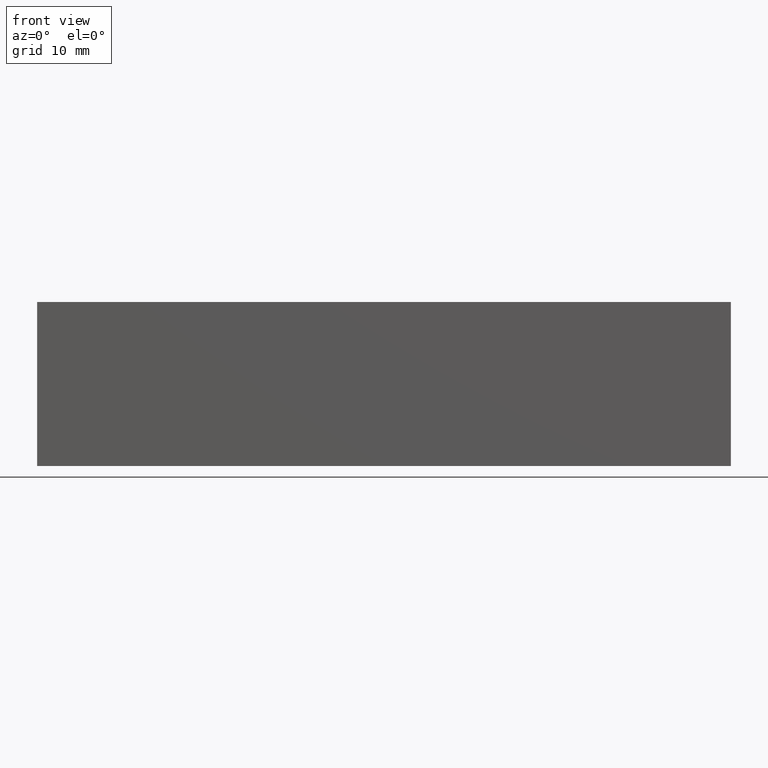
[diagram: clean part render]
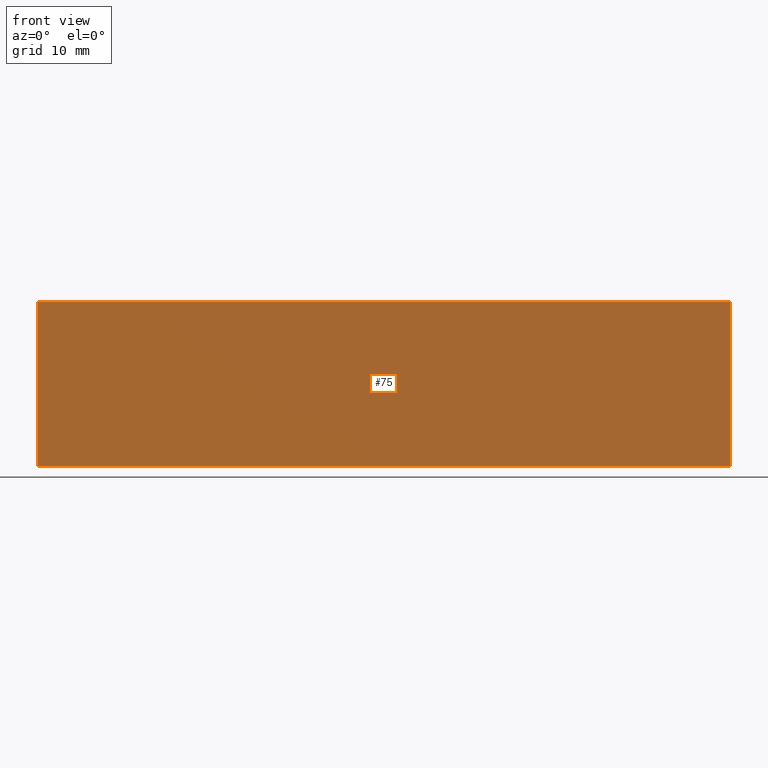
[diagram: same view with one face highlighted and labeled with its STEP entity id]
A machine part, front view. The second image highlights one B-rep face of the part: STEP entity #75.
In plain terms, the highlighted planar face has unit normal (0, 1, 0).
Its self-contained STEP definition (entity closure, byte-faithful):
#6 = PLANE ( 'NONE',  #300 ) ;
#9 = DIRECTION ( 'NONE',  ( 1.000000000000000000, 0.0000000000000000000, 0.0000000000000000000 ) ) ;
#19 = LINE ( 'NONE', #192, #268 ) ;
#30 = DIRECTION ( 'NONE',  ( 0.0000000000000000000, -0.0000000000000000000, 1.000000000000000000 ) ) ;
#38 = VECTOR ( 'NONE', #9, 1000.000000000000000 ) ;
#55 = EDGE_LOOP ( 'NONE', ( #209, #70, #182, #173 ) ) ;
#59 = CARTESIAN_POINT ( 'NONE',  ( 57.56530050263808100, 74.88315572825172200, 15.00000000000000000 ) ) ;
#63 = CARTESIAN_POINT ( 'NONE',  ( 120.9653007026382200, 74.88315572825172200, 15.00000000000000000 ) ) ;
#70 = ORIENTED_EDGE ( 'NONE', *, *, #244, .F. ) ;
#75 = ADVANCED_FACE ( 'NONE', ( #206 ), #6, .F. ) ;
#82 = DIRECTION ( 'NONE',  ( 0.0000000000000000000, 1.000000000000000000, 0.0000000000000000000 ) ) ;
#90 = DIRECTION ( 'NONE',  ( 1.000000000000000000, 0.0000000000000000000, 0.0000000000000000000 ) ) ;
#99 = EDGE_CURVE ( 'NONE', #136, #142, #177, .T. ) ;
#106 = CARTESIAN_POINT ( 'NONE',  ( 57.56530050263808100, 74.88315572825172200, 0.0000000000000000000 ) ) ;
#134 = DIRECTION ( 'NONE',  ( -0.0000000000000000000, -0.0000000000000000000, -1.000000000000000000 ) ) ;
#136 = VERTEX_POINT ( 'NONE', #106 ) ;
#142 = VERTEX_POINT ( 'NONE', #234 ) ;
#173 = ORIENTED_EDGE ( 'NONE', *, *, #240, .T. ) ;
#177 = LINE ( 'NONE', #280, #38 ) ;
#182 = ORIENTED_EDGE ( 'NONE', *, *, #233, .F. ) ;
#185 = CARTESIAN_POINT ( 'NONE',  ( 57.56530050263808100, 74.88315572825172200, 15.00000000000000000 ) ) ;
#192 = CARTESIAN_POINT ( 'NONE',  ( 57.56530050263808100, 74.88315572825172200, 15.00000000000000000 ) ) ;
#201 = VECTOR ( 'NONE', #134, 1000.000000000000000 ) ;
#206 = FACE_OUTER_BOUND ( 'NONE', #55, .T. ) ;
#209 = ORIENTED_EDGE ( 'NONE', *, *, #99, .T. ) ;
#212 = VERTEX_POINT ( 'NONE', #304 ) ;
#217 = CARTESIAN_POINT ( 'NONE',  ( 57.56530050263808100, 74.88315572825172200, 15.00000000000000000 ) ) ;
#233 = EDGE_CURVE ( 'NONE', #275, #212, #19, .T. ) ;
#234 = CARTESIAN_POINT ( 'NONE',  ( 120.9653007026382200, 74.88315572825172200, 0.0000000000000000000 ) ) ;
#240 = EDGE_CURVE ( 'NONE', #275, #136, #282, .T. ) ;
#244 = EDGE_CURVE ( 'NONE', #212, #142, #257, .T. ) ;
#245 = VECTOR ( 'NONE', #284, 1000.000000000000000 ) ;
#257 = LINE ( 'NONE', #63, #201 ) ;
#268 = VECTOR ( 'NONE', #90, 1000.000000000000000 ) ;
#275 = VERTEX_POINT ( 'NONE', #59 ) ;
#280 = CARTESIAN_POINT ( 'NONE',  ( 57.56530050263808100, 74.88315572825172200, 0.0000000000000000000 ) ) ;
#282 = LINE ( 'NONE', #217, #245 ) ;
#284 = DIRECTION ( 'NONE',  ( -0.0000000000000000000, -0.0000000000000000000, -1.000000000000000000 ) ) ;
#300 = AXIS2_PLACEMENT_3D ( 'NONE', #185, #82, #30 ) ;
#304 = CARTESIAN_POINT ( 'NONE',  ( 120.9653007026382200, 74.88315572825172200, 15.00000000000000000 ) ) ;